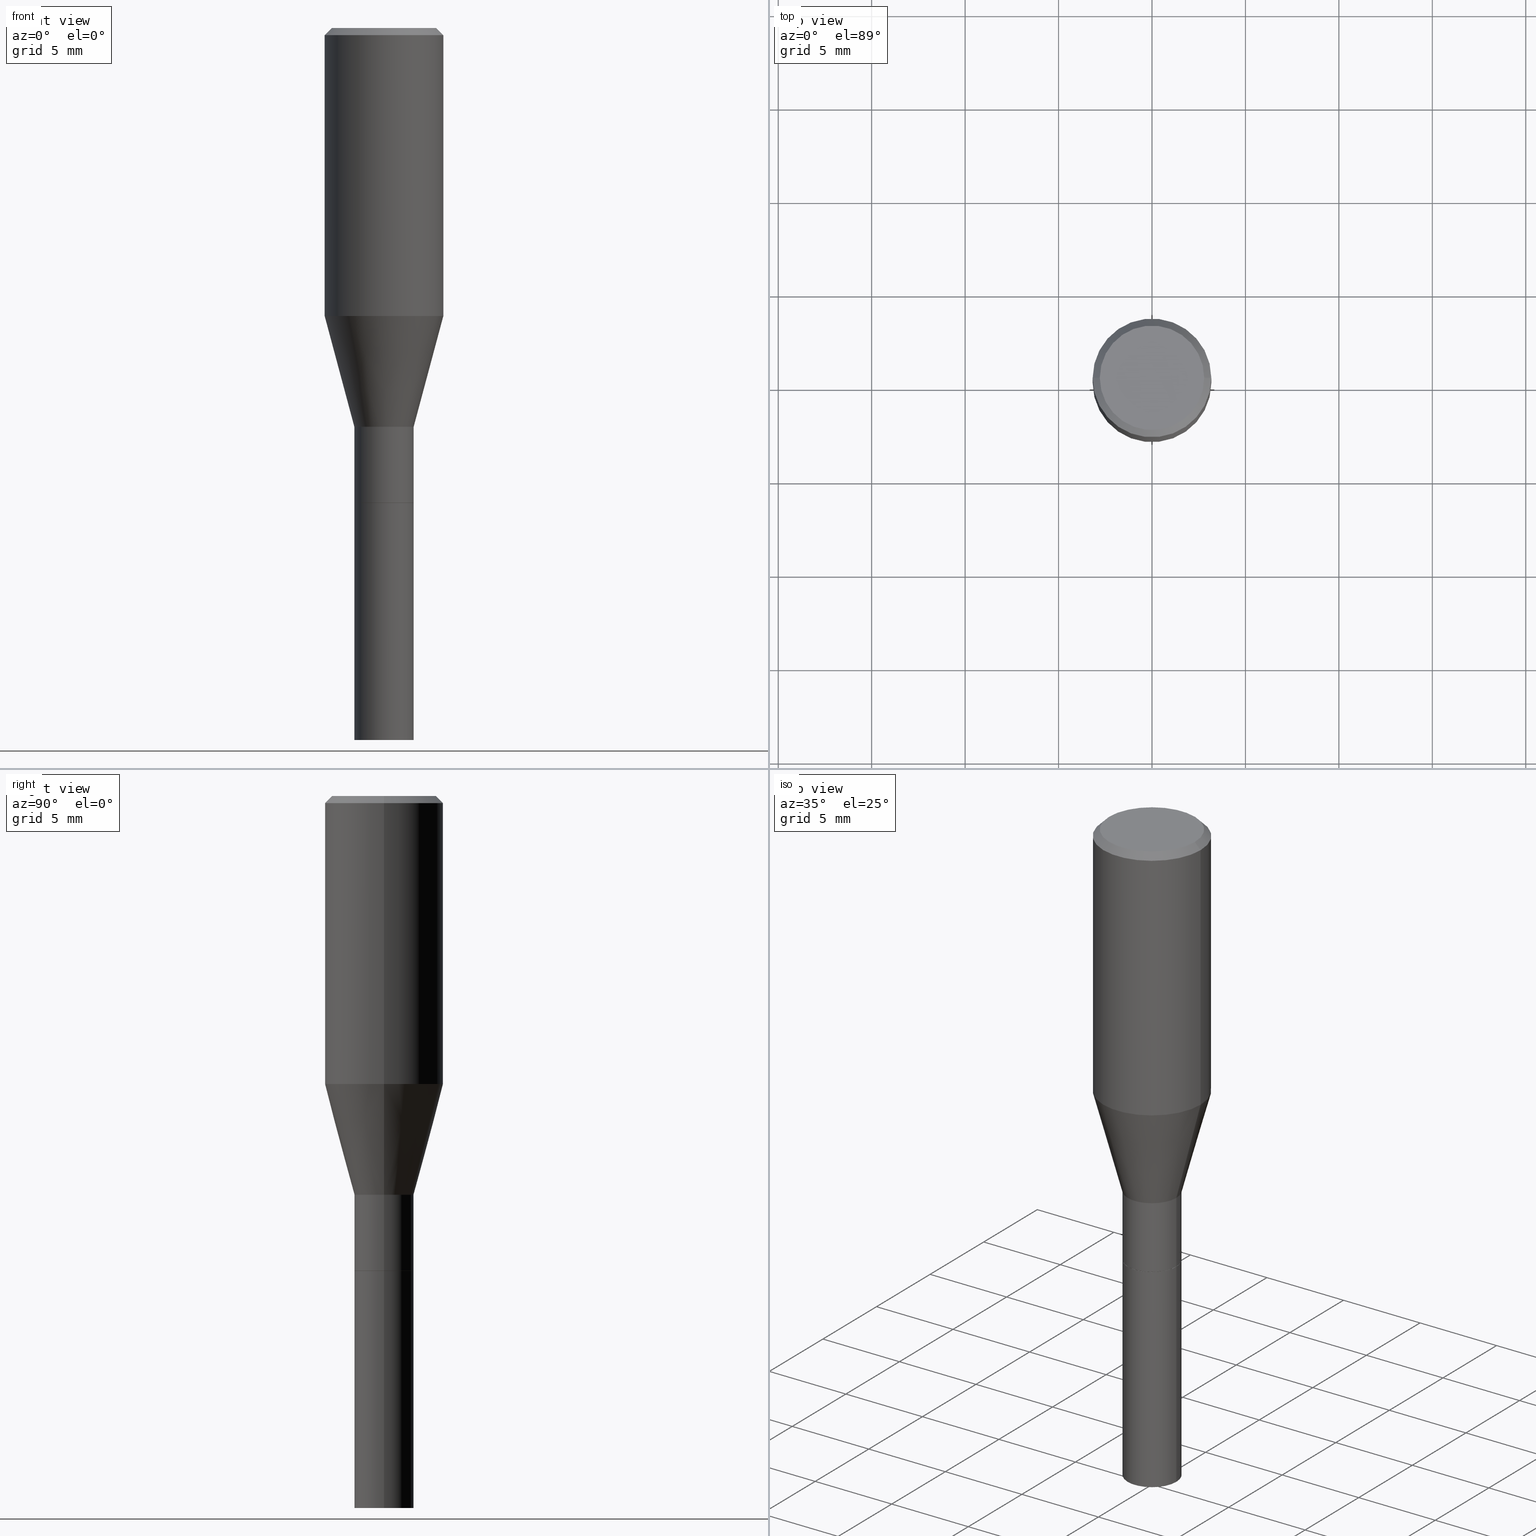
[diagram: canonical four-view strip — front | top / right | iso, engineering-drawing reading convention]
A machine part, canonical four-view strip (front | top / right | iso — engineering-drawing reading convention). The complete STEP part file that produces these views, byte-faithful:
ISO-10303-21;
HEADER;
FILE_DESCRIPTION (( 'STEP AP203' ),
    '1' );
FILE_NAME ('91001.STEP',
    '2024-03-12T20:20:20',
    ( '' ),
    ( '' ),
    'SwSTEP 2.0',
    'SolidWorks 2023',
    '' );
FILE_SCHEMA (( 'CONFIG_CONTROL_DESIGN' ));
ENDSEC;

DATA;
#1 = VECTOR ( 'NONE', #235, 39.37007874015748143 ) ;
#2 = AXIS2_PLACEMENT_3D ( 'NONE', #300, #174, #449 ) ;
#3 = ORIENTED_EDGE ( 'NONE', *, *, #60, .F. ) ;
#4 = ORIENTED_EDGE ( 'NONE', *, *, #387, .T. ) ;
#5 = CARTESIAN_POINT ( 'NONE',  ( 2.445468806185136877E-29, -3.491481338843145977E-15, -1.000000000000000222 ) ) ;
#6 = ORIENTED_EDGE ( 'NONE', *, *, #167, .F. ) ;
#7 = PLANE ( 'NONE',  #180 ) ;
#8 = PLANE ( 'NONE',  #272 ) ;
#9 = ORIENTED_EDGE ( 'NONE', *, *, #310, .F. ) ;
#10 = CYLINDRICAL_SURFACE ( 'NONE', #289, 0.06250000000000000000 ) ;
#11 = VERTEX_POINT ( 'NONE', #260 ) ;
#12 = CARTESIAN_POINT ( 'NONE',  ( -0.06250000000000000000, -3.920262463703869855E-15, -1.500000000000000222 ) ) ;
#13 = CARTESIAN_POINT ( 'NONE',  ( 7.681258945454893776E-16, 0.1100000000000000006, -3.567410525261111604E-16 ) ) ;
#14 = CARTESIAN_POINT ( 'NONE',  ( 0.06250000000000000000, -4.364351673553916694E-16, 3.047610484872459871E-30 ) ) ;
#15 = CYLINDRICAL_SURFACE ( 'NONE', #101, 0.1250000000000000000 ) ;
#16 = CIRCLE ( 'NONE', #173, 0.06199999999999999956 ) ;
#17 = AXIS2_PLACEMENT_3D ( 'NONE', #166, #97, #210 ) ;
#18 = CARTESIAN_POINT ( 'NONE',  ( 3.668203209277704895E-29, -5.237222008264718177E-15, -1.500000000000000222 ) ) ;
#19 = PERSON_AND_ORGANIZATION_ROLE ( 'design_owner' ) ;
#20 = CARTESIAN_POINT ( 'NONE',  ( -0.1250000000000000000, 8.881784197001252323E-16, -6.148668862818632227E-30 ) ) ;
#21 = DIRECTION ( 'NONE',  ( -2.445468806185136597E-29, 3.491481338843145583E-15, 1.000000000000000000 ) ) ;
#22 = CALENDAR_DATE ( 2024, 12, 3 ) ;
#23 = DIRECTION ( 'NONE',  ( 1.000000000000000000, -6.982962677686266711E-15, 0.000000000000000000 ) ) ;
#24 = EDGE_CURVE ( 'NONE', #263, #356, #122, .T. ) ;
#25 = APPROVAL_DATE_TIME ( #407, #54 ) ;
#26 = DIRECTION ( 'NONE',  ( 1.000000000000000000, -6.982962677686266711E-15, 4.876176775795935232E-29 ) ) ;
#27 = DIRECTION ( 'NONE',  ( -2.445468806185136877E-29, 3.491481338843145188E-15, 1.000000000000000000 ) ) ;
#28 = FACE_OUTER_BOUND ( 'NONE', #385, .T. ) ;
#29 = CIRCLE ( 'NONE', #96, 0.06250000000000002776 ) ;
#30 = DIRECTION ( 'NONE',  ( 1.000000000000000000, -6.982962677686266711E-15, 4.876176775795935232E-29 ) ) ;
#31 = EDGE_LOOP ( 'NONE', ( #349, #4, #378, #148 ) ) ;
#32 = AXIS2_PLACEMENT_3D ( 'NONE', #270, #176, #372 ) ;
#33 = ADVANCED_FACE ( 'NONE', ( #438 ), #220, .T. ) ;
#34 = DIRECTION ( 'NONE',  ( -2.445468806185136597E-29, 3.491481338843145583E-15, 1.000000000000000000 ) ) ;
#35 = ORIENTED_EDGE ( 'NONE', *, *, #141, .T. ) ;
#36 = ADVANCED_FACE ( 'NONE', ( #159 ), #10, .T. ) ;
#37 = EDGE_LOOP ( 'NONE', ( #158, #103, #327, #115 ) ) ;
#38 = ORIENTED_EDGE ( 'NONE', *, *, #145, .T. ) ;
#39 = CARTESIAN_POINT ( 'NONE',  ( 1.483780432632532673E-29, -2.118445215238167770E-15, -0.6067468245269458382 ) ) ;
#40 = ORIENTED_EDGE ( 'NONE', *, *, #248, .F. ) ;
#41 = ADVANCED_FACE ( 'NONE', ( #201 ), #8, .F. ) ;
#42 = ORIENTED_EDGE ( 'NONE', *, *, #221, .T. ) ;
#43 = ADVANCED_FACE ( 'NONE', ( #365 ), #15, .T. ) ;
#44 = DIRECTION ( 'NONE',  ( -2.438088387897960049E-29, 3.491481338843145188E-15, 1.000000000000000000 ) ) ;
#45 = DIRECTION ( 'NONE',  ( -2.445468806185136877E-29, 3.491481338843145188E-15, 1.000000000000000000 ) ) ;
#46 = DIRECTION ( 'NONE',  ( 1.000000000000000000, -6.982962677686262766E-15, 0.000000000000000000 ) ) ;
#47 = AXIS2_PLACEMENT_3D ( 'NONE', #466, #249, #352 ) ;
#48 = CARTESIAN_POINT ( 'NONE',  ( 0.1250000000000000000, -9.252425547934304180E-16, -0.01499999999999999944 ) ) ;
#49 = VERTEX_POINT ( 'NONE', #48 ) ;
#50 = DIRECTION ( 'NONE',  ( -0.7071067811865461294, 2.468850131082242072E-15, -0.7071067811865489050 ) ) ;
#51 = DIRECTION ( 'NONE',  ( -1.000000000000000000, 6.982962677686265922E-15, -4.876176775795935793E-29 ) ) ;
#52 = CARTESIAN_POINT ( 'NONE',  ( 0.06250000000000000000, -5.673657175620109846E-15, -1.500000000000000222 ) ) ;
#53 = DIRECTION ( 'NONE',  ( 1.000000000000000000, -6.982962677686270655E-15, 0.000000000000000000 ) ) ;
#54 = APPROVAL ( #233, 'UNSPECIFIED' ) ;
#55 = DIRECTION ( 'NONE',  ( -1.000000000000000000, 6.982962677686266711E-15, 0.000000000000000000 ) ) ;
#56 = MECHANICAL_CONTEXT ( 'NONE', #133, 'mechanical' ) ;
#57 = ADVANCED_FACE ( 'NONE', ( #191 ), #441, .T. ) ;
#58 = DIRECTION ( 'NONE',  ( 0.7071067811865461294, -7.319954787623251312E-15, -0.7071067811865489050 ) ) ;
#59 = DIRECTION ( 'NONE',  ( 1.000000000000000000, -6.982962677686266711E-15, 0.000000000000000000 ) ) ;
#60 = EDGE_CURVE ( 'NONE', #315, #435, #287, .T. ) ;
#61 = ADVANCED_FACE ( 'NONE', ( #397 ), #440, .F. ) ;
#62 = CARTESIAN_POINT ( 'NONE',  ( 0.1250000000000000000, -8.728703347107833388E-16, 6.095220969744919741E-30 ) ) ;
#63 = FACE_OUTER_BOUND ( 'NONE', #424, .T. ) ;
#64 = AXIS2_PLACEMENT_3D ( 'NONE', #182, #284, #30 ) ;
#65 = DATE_TIME_ROLE ( 'creation_date' ) ;
#66 = DIRECTION ( 'NONE',  ( -2.445468806185136597E-29, 3.491481338843145583E-15, 1.000000000000000000 ) ) ;
#67 = ORIENTED_EDGE ( 'NONE', *, *, #175, .T. ) ;
#68 = EDGE_LOOP ( 'NONE', ( #67, #253, #382, #3 ) ) ;
#69 =( LENGTH_UNIT ( ) NAMED_UNIT ( * ) SI_UNIT ( $, .METRE. ) );
#70 = APPROVAL_ROLE ( '' ) ;
#71 = CIRCLE ( 'NONE', #32, 0.06250000000000002776 ) ;
#72 = FACE_OUTER_BOUND ( 'NONE', #199, .T. ) ;
#73 = ORIENTED_EDGE ( 'NONE', *, *, #129, .T. ) ;
#74 = ORIENTED_EDGE ( 'NONE', *, *, #361, .F. ) ;
#75 = VERTEX_POINT ( 'NONE', #225 ) ;
#76 = EDGE_LOOP ( 'NONE', ( #40, #183 ) ) ;
#77 =( GEOMETRIC_REPRESENTATION_CONTEXT ( 3 ) GLOBAL_UNCERTAINTY_ASSIGNED_CONTEXT ( ( #405 ) ) GLOBAL_UNIT_ASSIGNED_CONTEXT ( ( #415, #379, #383 ) ) REPRESENTATION_CONTEXT ( 'NONE', 'WORKASPACE' ) );
#78 = ORIENTED_EDGE ( 'NONE', *, *, #387, .F. ) ;
#79 = DIRECTION ( 'NONE',  ( 1.000000000000000000, -6.982962677686266711E-15, 4.876176775795935793E-29 ) ) ;
#80 = APPROVAL_PERSON_ORGANIZATION ( #142, #239, #70 ) ;
#81 = VERTEX_POINT ( 'NONE', #84 ) ;
#82 = EDGE_CURVE ( 'NONE', #435, #285, #29, .T. ) ;
#83 = CC_DESIGN_PERSON_AND_ORGANIZATION_ASSIGNMENT ( #212, #104, ( #232 ) ) ;
#84 = CARTESIAN_POINT ( 'NONE',  ( -0.1100000000000000006, 7.943120045868128186E-16, 5.464378949326430820E-17 ) ) ;
#85 = ORIENTED_EDGE ( 'NONE', *, *, #144, .F. ) ;
#86 = AXIS2_PLACEMENT_3D ( 'NONE', #119, #400, #87 ) ;
#87 = DIRECTION ( 'NONE',  ( 1.000000000000000000, -6.982962677686267499E-15, 0.000000000000000000 ) ) ;
#88 = VECTOR ( 'NONE', #316, 39.37007874015748854 ) ;
#89 = VECTOR ( 'NONE', #345, 39.37007874015748854 ) ;
#90 = EDGE_CURVE ( 'NONE', #75, #285, #156, .T. ) ;
#91 = PERSON_AND_ORGANIZATION ( #224, #106 ) ;
#92 = APPLICATION_CONTEXT ( 'configuration controlled 3d designs of mechanical parts and assemblies' ) ;
#93 = LOCAL_TIME ( 16, 20, 20.00000000000000000, #169 ) ;
#94 = DIRECTION ( 'NONE',  ( 2.445468806185136597E-29, -3.491481338843145583E-15, -1.000000000000000000 ) ) ;
#95 = CARTESIAN_POINT ( 'NONE',  ( -0.06250000000000005551, 4.440892098500630106E-16, -3.074334431409318916E-30 ) ) ;
#96 = AXIS2_PLACEMENT_3D ( 'NONE', #194, #297, #404 ) ;
#97 = DIRECTION ( 'NONE',  ( -2.445468806185136597E-29, 3.491481338843145583E-15, 1.000000000000000000 ) ) ;
#98 = AXIS2_PLACEMENT_3D ( 'NONE', #127, #94, #55 ) ;
#99 = DIRECTION ( 'NONE',  ( 1.000000000000000000, -6.982962677686270655E-15, 0.000000000000000000 ) ) ;
#100 = DATE_AND_TIME ( #131, #445 ) ;
#101 = AXIS2_PLACEMENT_3D ( 'NONE', #394, #437, #162 ) ;
#102 = AXIS2_PLACEMENT_3D ( 'NONE', #170, #299, #99 ) ;
#103 = ORIENTED_EDGE ( 'NONE', *, *, #377, .F. ) ;
#104 = PERSON_AND_ORGANIZATION_ROLE ( 'creator' ) ;
#105 = FACE_OUTER_BOUND ( 'NONE', #219, .T. ) ;
#106 = ORGANIZATION ( 'UNSPECIFIED', 'UNSPECIFIED', '' ) ;
#107 = EDGE_CURVE ( 'NONE', #414, #321, #375, .T. ) ;
#108 = LENGTH_MEASURE_WITH_UNIT ( LENGTH_MEASURE( 0.02539999999999999897 ), #69 );
#109 = DIRECTION ( 'NONE',  ( 1.000000000000000000, -6.982962677686266711E-15, 0.000000000000000000 ) ) ;
#110 = ORIENTED_EDGE ( 'NONE', *, *, #434, .F. ) ;
#111 = CARTESIAN_POINT ( 'NONE',  ( 2.445468806185136877E-29, -3.491481338843145977E-15, -1.000000000000000222 ) ) ;
#112 = ORIENTED_EDGE ( 'NONE', *, *, #401, .T. ) ;
#113 = ORIENTED_EDGE ( 'NONE', *, *, #461, .T. ) ;
#114 = CARTESIAN_POINT ( 'NONE',  ( 0.000000000000000000, 0.000000000000000000, 0.000000000000000000 ) ) ;
#115 = ORIENTED_EDGE ( 'NONE', *, *, #416, .T. ) ;
#116 = VECTOR ( 'NONE', #125, 39.37007874015748143 ) ;
#117 = ORIENTED_EDGE ( 'NONE', *, *, #90, .F. ) ;
#118 = DIRECTION ( 'NONE',  ( -2.445468806185136597E-29, 3.491481338843145583E-15, 1.000000000000000000 ) ) ;
#119 = CARTESIAN_POINT ( 'NONE',  ( 2.054193797195514674E-29, -2.932844324628242353E-15, -0.8400000000000000799 ) ) ;
#120 = DIRECTION ( 'NONE',  ( -2.438088387897960049E-29, 3.491481338843145188E-15, 1.000000000000000000 ) ) ;
#121 = DIRECTION ( 'NONE',  ( -1.000000000000000000, 6.982962677686265922E-15, -4.876176775795935793E-29 ) ) ;
#122 = CIRCLE ( 'NONE', #202, 0.06250000000000000000 ) ;
#123 = ADVANCED_FACE ( 'NONE', ( #323 ), #412, .T. ) ;
#124 = VECTOR ( 'NONE', #58, 39.37007874015748143 ) ;
#125 = DIRECTION ( 'NONE',  ( -2.445468806185136877E-29, 3.491481338843145188E-15, 1.000000000000000000 ) ) ;
#126 = CARTESIAN_POINT ( 'NONE',  ( 4.364351673554160748E-16, 0.06249999999999650974, -1.000000000000000444 ) ) ;
#127 = CARTESIAN_POINT ( 'NONE',  ( 3.668203209277705088E-31, -5.237222008264718399E-17, -0.01499999999999999944 ) ) ;
#128 = CARTESIAN_POINT ( 'NONE',  ( 3.668203209277705088E-31, -5.237222008264718399E-17, -0.01499999999999999944 ) ) ;
#129 = EDGE_CURVE ( 'NONE', #414, #49, #168, .T. ) ;
#130 = CARTESIAN_POINT ( 'NONE',  ( 0.1100000000000000006, -8.322946247794783877E-16, 5.464378949327537075E-17 ) ) ;
#131 = CALENDAR_DATE ( 2024, 12, 3 ) ;
#132 = AXIS2_PLACEMENT_3D ( 'NONE', #126, #265, #121 ) ;
#133 = APPLICATION_CONTEXT ( 'configuration controlled 3d designs of mechanical parts and assemblies' ) ;
#134 = CARTESIAN_POINT ( 'NONE',  ( 0.000000000000000000, 0.000000000000000000, 0.000000000000000000 ) ) ;
#135 = CARTESIAN_POINT ( 'NONE',  ( 3.668203209277705088E-31, -5.237222008264718399E-17, -0.01499999999999999944 ) ) ;
#136 = CARTESIAN_POINT ( 'NONE',  ( 0.000000000000000000, 0.000000000000000000, 0.000000000000000000 ) ) ;
#137 = PERSON_AND_ORGANIZATION_ROLE ( 'creator' ) ;
#138 = FACE_OUTER_BOUND ( 'NONE', #31, .T. ) ;
#139 = CIRCLE ( 'NONE', #343, 0.1250000000000000000 ) ;
#140 = CARTESIAN_POINT ( 'NONE',  ( -1.336296826575383585E-45, 1.907877712994245642E-31, 5.464378949326977476E-17 ) ) ;
#141 = EDGE_CURVE ( 'NONE', #292, #319, #255, .T. ) ;
#142 = PERSON_AND_ORGANIZATION ( #224, #106 ) ;
#143 = CARTESIAN_POINT ( 'NONE',  ( 3.668203209277704895E-29, -5.237222008264718177E-15, -1.500000000000000222 ) ) ;
#144 = EDGE_CURVE ( 'NONE', #358, #288, #16, .T. ) ;
#145 = EDGE_CURVE ( 'NONE', #49, #11, #455, .T. ) ;
#146 = LINE ( 'NONE', #320, #359 ) ;
#147 = VECTOR ( 'NONE', #172, 39.37007874015748143 ) ;
#148 = ORIENTED_EDGE ( 'NONE', *, *, #157, .F. ) ;
#149 = ORIENTED_EDGE ( 'NONE', *, *, #179, .F. ) ;
#150 = ADVANCED_FACE ( 'NONE', ( #138 ), #336, .T. ) ;
#151 = DIRECTION ( 'NONE',  ( -1.000000000000000000, 6.982962677686266711E-15, 0.000000000000000000 ) ) ;
#152 = ORIENTED_EDGE ( 'NONE', *, *, #337, .F. ) ;
#153 = AXIS2_PLACEMENT_3D ( 'NONE', #39, #294, #189 ) ;
#154 = ORIENTED_EDGE ( 'NONE', *, *, #198, .T. ) ;
#155 = AXIS2_PLACEMENT_3D ( 'NONE', #258, #396, #197 ) ;
#156 = LINE ( 'NONE', #95, #1 ) ;
#157 = EDGE_CURVE ( 'NONE', #435, #414, #267, .T. ) ;
#158 = ORIENTED_EDGE ( 'NONE', *, *, #401, .F. ) ;
#159 = FACE_OUTER_BOUND ( 'NONE', #367, .T. ) ;
#160 = CC_DESIGN_PERSON_AND_ORGANIZATION_ASSIGNMENT ( #312, #137, ( #348 ) ) ;
#161 = PERSON_AND_ORGANIZATION ( #224, #106 ) ;
#162 = DIRECTION ( 'NONE',  ( 1.000000000000000000, -6.982962677686266711E-15, 4.876176775795935793E-29 ) ) ;
#163 = LINE ( 'NONE', #338, #89 ) ;
#164 = DIRECTION ( 'NONE',  ( -2.445468806185136597E-29, 3.491481338843145583E-15, 1.000000000000000000 ) ) ;
#165 = APPROVAL_ROLE ( '' ) ;
#166 = CARTESIAN_POINT ( 'NONE',  ( 0.000000000000000000, 0.000000000000000000, 0.000000000000000000 ) ) ;
#167 = EDGE_CURVE ( 'NONE', #75, #315, #266, .T. ) ;
#168 = LINE ( 'NONE', #62, #171 ) ;
#169 = COORDINATED_UNIVERSAL_TIME_OFFSET ( 5, 0, .BEHIND. ) ;
#170 = CARTESIAN_POINT ( 'NONE',  ( 2.445468806185136877E-29, -3.491481338843145977E-15, -1.000000000000000222 ) ) ;
#171 = VECTOR ( 'NONE', #27, 39.37007874015748143 ) ;
#172 = DIRECTION ( 'NONE',  ( -0.7071067811865656694, 7.493145998870420424E-15, 0.7071067811865294761 ) ) ;
#173 = AXIS2_PLACEMENT_3D ( 'NONE', #341, #21, #208 ) ;
#174 = DIRECTION ( 'NONE',  ( -2.445468806185136597E-29, 3.491481338843145583E-15, 1.000000000000000000 ) ) ;
#175 = EDGE_CURVE ( 'NONE', #315, #75, #393, .T. ) ;
#176 = DIRECTION ( 'NONE',  ( -2.445468806185136597E-29, 3.491481338843145583E-15, 1.000000000000000000 ) ) ;
#177 = SECURITY_CLASSIFICATION_LEVEL ( 'unclassified' ) ;
#178 = DIRECTION ( 'NONE',  ( 1.000000000000000000, -6.982962677686262766E-15, 0.000000000000000000 ) ) ;
#179 = EDGE_CURVE ( 'NONE', #321, #414, #139, .T. ) ;
#180 = AXIS2_PLACEMENT_3D ( 'NONE', #111, #44, #333 ) ;
#181 = ORIENTED_EDGE ( 'NONE', *, *, #290, .F. ) ;
#182 = CARTESIAN_POINT ( 'NONE',  ( 0.000000000000000000, 0.000000000000000000, 0.000000000000000000 ) ) ;
#183 = ORIENTED_EDGE ( 'NONE', *, *, #141, .F. ) ;
#184 = CARTESIAN_POINT ( 'NONE',  ( 0.06250000000000000000, -3.927916506198537646E-15, -1.000000000000000222 ) ) ;
#185 = AXIS2_PLACEMENT_3D ( 'NONE', #135, #411, #59 ) ;
#186 = ORIENTED_EDGE ( 'NONE', *, *, #145, .F. ) ;
#187 = ORIENTED_EDGE ( 'NONE', *, *, #337, .T. ) ;
#188 = LOCAL_TIME ( 16, 20, 20.00000000000000000, #324 ) ;
#189 = DIRECTION ( 'NONE',  ( 1.000000000000000000, -6.982962677686266711E-15, 0.000000000000000000 ) ) ;
#190 = EDGE_LOOP ( 'NONE', ( #360, #112, #38, #325 ) ) ;
#191 = FACE_OUTER_BOUND ( 'NONE', #37, .T. ) ;
#192 = ORIENTED_EDGE ( 'NONE', *, *, #221, .F. ) ;
#193 = CARTESIAN_POINT ( 'NONE',  ( -0.1250000000000000000, 8.204981146281362596E-16, -0.01499999999999999944 ) ) ;
#194 = CARTESIAN_POINT ( 'NONE',  ( 2.054193797195514674E-29, -2.932844324628242353E-15, -0.8400000000000000799 ) ) ;
#195 = ORIENTED_EDGE ( 'NONE', *, *, #129, .F. ) ;
#196 = VECTOR ( 'NONE', #370, 39.37007874015748143 ) ;
#197 = DIRECTION ( 'NONE',  ( 1.000000000000000000, -6.982962677686262766E-15, 0.000000000000000000 ) ) ;
#198 = EDGE_CURVE ( 'NONE', #429, #81, #203, .T. ) ;
#199 = EDGE_LOOP ( 'NONE', ( #464, #313, #73, #398 ) ) ;
#200 = CC_DESIGN_APPROVAL ( #239, ( #347 ) ) ;
#201 = FACE_OUTER_BOUND ( 'NONE', #388, .T. ) ;
#202 = AXIS2_PLACEMENT_3D ( 'NONE', #364, #295, #46 ) ;
#203 = CIRCLE ( 'NONE', #211, 0.1100000000000000006 ) ;
#204 = LINE ( 'NONE', #452, #147 ) ;
#205 = LINE ( 'NONE', #20, #116 ) ;
#206 = DIRECTION ( 'NONE',  ( 1.000000000000000000, -6.982962677686262766E-15, 0.000000000000000000 ) ) ;
#207 = CARTESIAN_POINT ( 'NONE',  ( 0.1250000000000000000, -2.991315549948951109E-15, -0.6067468245269458382 ) ) ;
#208 = DIRECTION ( 'NONE',  ( 1.000000000000000000, -6.982962677686270655E-15, 0.000000000000000000 ) ) ;
#209 = VECTOR ( 'NONE', #45, 39.37007874015748143 ) ;
#210 = DIRECTION ( 'NONE',  ( 1.000000000000000000, -6.982962677686266711E-15, 4.876176775795935793E-29 ) ) ;
#211 = AXIS2_PLACEMENT_3D ( 'NONE', #140, #381, #460 ) ;
#212 = PERSON_AND_ORGANIZATION ( #224, #106 ) ;
#213 = DESIGN_CONTEXT ( 'detailed design', #92, 'design' ) ;
#214 = CARTESIAN_POINT ( 'NONE',  ( 1.483780432632532673E-29, -2.118445215238167770E-15, -0.6067468245269458382 ) ) ;
#215 = CARTESIAN_POINT ( 'NONE',  ( 0.000000000000000000, 0.000000000000000000, 0.000000000000000000 ) ) ;
#216 = DIRECTION ( 'NONE',  ( -2.445468806185136597E-29, 3.491481338843145583E-15, 1.000000000000000000 ) ) ;
#217 = CIRCLE ( 'NONE', #256, 0.06250000000000000000 ) ;
#218 = ORIENTED_EDGE ( 'NONE', *, *, #310, .T. ) ;
#219 = EDGE_LOOP ( 'NONE', ( #227, #187, #465, #74 ) ) ;
#220 = CONICAL_SURFACE ( 'NONE', #86, 0.06250000000000002776, 0.2617993877991499074 ) ;
#221 = EDGE_CURVE ( 'NONE', #292, #356, #146, .T. ) ;
#222 = AXIS2_PLACEMENT_3D ( 'NONE', #304, #308, #373 ) ;
#223 = ORIENTED_EDGE ( 'NONE', *, *, #453, .F. ) ;
#224 = PERSON ( 'UNSPECIFIED', 'UNSPECIFIED', 'UNSPECIFIED', ('UNSPECIFIED'), ('UNSPECIFIED'), ('UNSPECIFIED') ) ;
#225 = CARTESIAN_POINT ( 'NONE',  ( -0.06250000000000005551, -3.045646388323661463E-15, -0.9995000000000000551 ) ) ;
#226 = ORIENTED_EDGE ( 'NONE', *, *, #434, .T. ) ;
#227 = ORIENTED_EDGE ( 'NONE', *, *, #144, .T. ) ;
#228 = ADVANCED_FACE ( 'NONE', ( #72 ), #380, .T. ) ;
#229 = ADVANCED_FACE ( 'NONE', ( #28 ), #425, .T. ) ;
#230 = CARTESIAN_POINT ( 'NONE',  ( -0.06199999999999999956, -3.048295615497772664E-15, -1.000000000000000222 ) ) ;
#231 = ORIENTED_EDGE ( 'NONE', *, *, #107, .T. ) ;
#232 = PRODUCT_DEFINITION_FORMATION_WITH_SPECIFIED_SOURCE ( 'ANY', '', #409, .NOT_KNOWN. ) ;
#233 = APPROVAL_STATUS ( 'not_yet_approved' ) ;
#234 = FACE_OUTER_BOUND ( 'NONE', #190, .T. ) ;
#235 = DIRECTION ( 'NONE',  ( -2.445468806185136877E-29, 3.491481338843145188E-15, 1.000000000000000000 ) ) ;
#236 = CARTESIAN_POINT ( 'NONE',  ( -0.1250000000000000000, -1.230266795538042735E-15, -0.6067468245269458382 ) ) ;
#237 = DIMENSIONAL_EXPONENTS ( 1.000000000000000000, 0.000000000000000000, 0.000000000000000000, 0.000000000000000000, 0.000000000000000000, 0.000000000000000000, 0.000000000000000000 ) ;
#238 = LINE ( 'NONE', #443, #196 ) ;
#239 = APPROVAL ( #421, 'UNSPECIFIED' ) ;
#240 = APPROVAL_DATE_TIME ( #100, #291 ) ;
#241 = AXIS2_PLACEMENT_3D ( 'NONE', #18, #459, #206 ) ;
#242 = CONICAL_SURFACE ( 'NONE', #98, 0.1250000000000000000, 0.7853981633974463916 ) ;
#243 = APPROVAL_PERSON_ORGANIZATION ( #456, #291, #458 ) ;
#244 = DIRECTION ( 'NONE',  ( 1.000000000000000000, -6.982962677686264344E-15, 0.000000000000000000 ) ) ;
#245 = PERSON_AND_ORGANIZATION_ROLE ( 'design_supplier' ) ;
#246 = CLOSED_SHELL ( 'NONE', ( #317, #273, #36, #61 ) ) ;
#247 = CIRCLE ( 'NONE', #102, 0.06199999999999999956 ) ;
#248 = EDGE_CURVE ( 'NONE', #319, #292, #217, .T. ) ;
#249 = DIRECTION ( 'NONE',  ( -2.445468806185136597E-29, 3.491481338843145583E-15, 1.000000000000000000 ) ) ;
#250 = EDGE_LOOP ( 'NONE', ( #85, #110 ) ) ;
#251 = LINE ( 'NONE', #14, #344 ) ;
#252 = DATE_AND_TIME ( #353, #188 ) ;
#253 = ORIENTED_EDGE ( 'NONE', *, *, #90, .T. ) ;
#254 = ORIENTED_EDGE ( 'NONE', *, *, #361, .T. ) ;
#255 = CIRCLE ( 'NONE', #241, 0.06250000000000000000 ) ;
#256 = AXIS2_PLACEMENT_3D ( 'NONE', #143, #278, #178 ) ;
#257 = EDGE_LOOP ( 'NONE', ( #78, #391, #330, #149 ) ) ;
#258 = CARTESIAN_POINT ( 'NONE',  ( 2.445468806185136877E-29, -3.491481338843145977E-15, -1.000000000000000222 ) ) ;
#259 = CARTESIAN_POINT ( 'NONE',  ( 0.06250000000000005551, -4.364351673553920638E-16, 3.047610484872462323E-30 ) ) ;
#260 = CARTESIAN_POINT ( 'NONE',  ( -0.1250000000000000000, -1.972302979602822908E-16, -0.01499999999999999944 ) ) ;
#261 = ADVANCED_FACE ( 'NONE', ( #105 ), #376, .T. ) ;
#262 = CARTESIAN_POINT ( 'NONE',  ( 0.06250000000000005551, -3.926170765529116932E-15, -0.9995000000000000551 ) ) ;
#263 = VERTEX_POINT ( 'NONE', #184 ) ;
#264 = AXIS2_PLACEMENT_3D ( 'NONE', #5, #118, #53 ) ;
#265 = DIRECTION ( 'NONE',  ( 2.438088387897960049E-29, -3.491481338843145188E-15, -1.000000000000000000 ) ) ;
#266 = CIRCLE ( 'NONE', #410, 0.06250000000000005551 ) ;
#267 = LINE ( 'NONE', #274, #88 ) ;
#268 = FACE_OUTER_BOUND ( 'NONE', #68, .T. ) ;
#269 = MANIFOLD_SOLID_BREP ( 'Body-Move/Copy2[1]', #246 ) ;
#270 = CARTESIAN_POINT ( 'NONE',  ( 2.054193797195514674E-29, -2.932844324628242353E-15, -0.8400000000000000799 ) ) ;
#271 = DATE_AND_TIME ( #22, #280 ) ;
#272 = AXIS2_PLACEMENT_3D ( 'NONE', #13, #328, #51 ) ;
#273 = ADVANCED_FACE ( 'NONE', ( #386 ), #311, .F. ) ;
#274 = CARTESIAN_POINT ( 'NONE',  ( 0.06250000000000002776, -3.369279491983634416E-15, -0.8400000000000000799 ) ) ;
#275 = COORDINATED_UNIVERSAL_TIME_OFFSET ( 5, 0, .BEHIND. ) ;
#276 = DIRECTION ( 'NONE',  ( -2.445468806185136877E-29, 3.491481338843145188E-15, 1.000000000000000000 ) ) ;
#277 = ADVANCED_BREP_SHAPE_REPRESENTATION ( '91001', ( #269, #442, #432 ), #77 ) ;
#278 = DIRECTION ( 'NONE',  ( -2.445468806185136597E-29, 3.491481338843145583E-15, 1.000000000000000000 ) ) ;
#279 = DIRECTION ( 'NONE',  ( -2.445468806185136597E-29, 3.491481338843145583E-15, 1.000000000000000000 ) ) ;
#280 = LOCAL_TIME ( 16, 20, 20.00000000000000000, #309 ) ;
#281 = SHAPE_DEFINITION_REPRESENTATION ( #451, #277 ) ;
#282 = EDGE_LOOP ( 'NONE', ( #363, #390 ) ) ;
#283 = ADVANCED_FACE ( 'NONE', ( #293 ), #7, .F. ) ;
#284 = DIRECTION ( 'NONE',  ( -2.445468806185136597E-29, 3.491481338843145583E-15, 1.000000000000000000 ) ) ;
#285 = VERTEX_POINT ( 'NONE', #431 ) ;
#286 = ORIENTED_EDGE ( 'NONE', *, *, #24, .F. ) ;
#287 = LINE ( 'NONE', #259, #209 ) ;
#288 = VERTEX_POINT ( 'NONE', #230 ) ;
#289 = AXIS2_PLACEMENT_3D ( 'NONE', #114, #331, #79 ) ;
#290 = EDGE_CURVE ( 'NONE', #356, #263, #314, .T. ) ;
#291 = APPROVAL ( #417, 'UNSPECIFIED' ) ;
#292 = VERTEX_POINT ( 'NONE', #12 ) ;
#293 = FACE_OUTER_BOUND ( 'NONE', #250, .T. ) ;
#294 = DIRECTION ( 'NONE',  ( -2.445468806185136597E-29, 3.491481338843145583E-15, 1.000000000000000000 ) ) ;
#295 = DIRECTION ( 'NONE',  ( -2.445468806185136597E-29, 3.491481338843145583E-15, 1.000000000000000000 ) ) ;
#296 = APPLICATION_PROTOCOL_DEFINITION ( 'international standard', 'config_control_design', 1994, #92 ) ;
#297 = DIRECTION ( 'NONE',  ( -2.445468806185136597E-29, 3.491481338843145583E-15, 1.000000000000000000 ) ) ;
#298 = AXIS2_PLACEMENT_3D ( 'NONE', #215, #34, #350 ) ;
#299 = DIRECTION ( 'NONE',  ( -2.445468806185136597E-29, 3.491481338843145583E-15, 1.000000000000000000 ) ) ;
#300 = CARTESIAN_POINT ( 'NONE',  ( 2.054193797195514674E-29, -2.932844324628242353E-15, -0.8400000000000000799 ) ) ;
#301 = COORDINATED_UNIVERSAL_TIME_OFFSET ( 5, 0, .BEHIND. ) ;
#302 = APPLICATION_PROTOCOL_DEFINITION ( 'international standard', 'config_control_design', 1994, #133 ) ;
#303 = PERSON_AND_ORGANIZATION_ROLE ( 'classification_officer' ) ;
#304 = CARTESIAN_POINT ( 'NONE',  ( -1.336296826575383585E-45, 1.907877712994245642E-31, 5.464378949326977476E-17 ) ) ;
#305 = EDGE_CURVE ( 'NONE', #81, #11, #399, .T. ) ;
#306 = CALENDAR_DATE ( 2024, 12, 3 ) ;
#307 = AXIS2_PLACEMENT_3D ( 'NONE', #136, #374, #26 ) ;
#308 = DIRECTION ( 'NONE',  ( -2.445468806185136597E-29, 3.491481338843145583E-15, 1.000000000000000000 ) ) ;
#309 = COORDINATED_UNIVERSAL_TIME_OFFSET ( 5, 0, .BEHIND. ) ;
#310 = EDGE_CURVE ( 'NONE', #319, #263, #251, .T. ) ;
#311 = PLANE ( 'NONE',  #403 ) ;
#312 = PERSON_AND_ORGANIZATION ( #224, #106 ) ;
#313 = ORIENTED_EDGE ( 'NONE', *, *, #179, .T. ) ;
#314 = CIRCLE ( 'NONE', #155, 0.06250000000000000000 ) ;
#315 = VERTEX_POINT ( 'NONE', #262 ) ;
#316 = DIRECTION ( 'NONE',  ( 0.2588190451025211836, 1.565188264969622559E-15, 0.9659258262890679791 ) ) ;
#317 = ADVANCED_FACE ( 'NONE', ( #63 ), #342, .T. ) ;
#318 = DATE_AND_TIME ( #306, #93 ) ;
#319 = VERTEX_POINT ( 'NONE', #52 ) ;
#320 = CARTESIAN_POINT ( 'NONE',  ( -0.06250000000000000000, 4.440892098500626162E-16, -3.074334431409316114E-30 ) ) ;
#321 = VERTEX_POINT ( 'NONE', #236 ) ;
#322 = ORIENTED_EDGE ( 'NONE', *, *, #248, .T. ) ;
#323 = FACE_OUTER_BOUND ( 'NONE', #426, .T. ) ;
#324 = COORDINATED_UNIVERSAL_TIME_OFFSET ( 5, 0, .BEHIND. ) ;
#325 = ORIENTED_EDGE ( 'NONE', *, *, #305, .F. ) ;
#326 = CARTESIAN_POINT ( 'NONE',  ( 3.668203209277705088E-31, -5.237222008264718399E-17, -0.01499999999999999944 ) ) ;
#327 = ORIENTED_EDGE ( 'NONE', *, *, #305, .T. ) ;
#328 = DIRECTION ( 'NONE',  ( 2.438088387897960049E-29, -3.491481338843145188E-15, -1.000000000000000000 ) ) ;
#329 = VECTOR ( 'NONE', #50, 39.37007874015748143 ) ;
#330 = ORIENTED_EDGE ( 'NONE', *, *, #157, .T. ) ;
#331 = DIRECTION ( 'NONE',  ( -2.445468806185136597E-29, 3.491481338843145583E-15, 1.000000000000000000 ) ) ;
#332 = ORIENTED_EDGE ( 'NONE', *, *, #377, .T. ) ;
#333 = DIRECTION ( 'NONE',  ( 1.000000000000000000, -6.982962677686265922E-15, 4.876176775795935793E-29 ) ) ;
#334 = CC_DESIGN_DATE_AND_TIME_ASSIGNMENT ( #318, #463, ( #347 ) ) ;
#335 = CARTESIAN_POINT ( 'NONE',  ( 0.06199999999999999956, -3.924425024859694639E-15, -1.000000000000000222 ) ) ;
#336 = CONICAL_SURFACE ( 'NONE', #2, 0.06250000000000002776, 0.2617993877991499074 ) ;
#337 = EDGE_CURVE ( 'NONE', #288, #75, #204, .T. ) ;
#338 = CARTESIAN_POINT ( 'NONE',  ( -0.06250000000000002776, -2.488755114778179736E-15, -0.8400000000000000799 ) ) ;
#339 = PERSON_AND_ORGANIZATION ( #224, #106 ) ;
#340 = CC_DESIGN_DATE_AND_TIME_ASSIGNMENT ( #271, #65, ( #348 ) ) ;
#341 = CARTESIAN_POINT ( 'NONE',  ( 2.445468806185136877E-29, -3.491481338843145977E-15, -1.000000000000000222 ) ) ;
#342 = CYLINDRICAL_SURFACE ( 'NONE', #17, 0.06250000000000000000 ) ;
#343 = AXIS2_PLACEMENT_3D ( 'NONE', #214, #216, #109 ) ;
#344 = VECTOR ( 'NONE', #436, 39.37007874015748143 ) ;
#345 = DIRECTION ( 'NONE',  ( -0.2588190451025211836, 5.211531920934547886E-15, 0.9659258262890679791 ) ) ;
#346 = PERSON_AND_ORGANIZATION ( #224, #106 ) ;
#347 = SECURITY_CLASSIFICATION ( '', '', #177 ) ;
#348 = PRODUCT_DEFINITION ( 'UNKNOWN', '', #232, #213 ) ;
#349 = ORIENTED_EDGE ( 'NONE', *, *, #82, .T. ) ;
#350 = DIRECTION ( 'NONE',  ( 1.000000000000000000, -6.982962677686266711E-15, 4.876176775795935793E-29 ) ) ;
#351 = CIRCLE ( 'NONE', #185, 0.1250000000000000000 ) ;
#352 = DIRECTION ( 'NONE',  ( 1.000000000000000000, -6.982962677686270655E-15, 0.000000000000000000 ) ) ;
#353 = CALENDAR_DATE ( 2024, 12, 3 ) ;
#354 = CARTESIAN_POINT ( 'NONE',  ( 3.576687321579069994E-29, -5.368277968210015545E-15, -1.500000000000000222 ) ) ;
#355 = APPROVAL_DATE_TIME ( #252, #239 ) ;
#356 = VERTEX_POINT ( 'NONE', #448 ) ;
#357 = AXIS2_PLACEMENT_3D ( 'NONE', #326, #433, #151 ) ;
#358 = VERTEX_POINT ( 'NONE', #335 ) ;
#359 = VECTOR ( 'NONE', #276, 39.37007874015748143 ) ;
#360 = ORIENTED_EDGE ( 'NONE', *, *, #198, .F. ) ;
#361 = EDGE_CURVE ( 'NONE', #358, #315, #238, .T. ) ;
#362 = CC_DESIGN_SECURITY_CLASSIFICATION ( #347, ( #232 ) ) ;
#363 = ORIENTED_EDGE ( 'NONE', *, *, #24, .T. ) ;
#364 = CARTESIAN_POINT ( 'NONE',  ( 2.445468806185136877E-29, -3.491481338843145977E-15, -1.000000000000000222 ) ) ;
#365 = FACE_OUTER_BOUND ( 'NONE', #427, .T. ) ;
#366 = LOCAL_TIME ( 16, 20, 20.00000000000000000, #301 ) ;
#367 = EDGE_LOOP ( 'NONE', ( #192, #35, #218, #181 ) ) ;
#368 = ADVANCED_FACE ( 'NONE', ( #234 ), #242, .T. ) ;
#369 = LINE ( 'NONE', #408, #124 ) ;
#370 = DIRECTION ( 'NONE',  ( 0.7071067811865656694, -2.468850131082446387E-15, 0.7071067811865294761 ) ) ;
#371 = APPROVAL_PERSON_ORGANIZATION ( #91, #54, #165 ) ;
#372 = DIRECTION ( 'NONE',  ( 1.000000000000000000, -6.982962677686267499E-15, 0.000000000000000000 ) ) ;
#373 = DIRECTION ( 'NONE',  ( 1.000000000000000000, -6.982962677686266711E-15, 4.873416144172425341E-29 ) ) ;
#374 = DIRECTION ( 'NONE',  ( -2.445468806185136597E-29, 3.491481338843145583E-15, 1.000000000000000000 ) ) ;
#375 = CIRCLE ( 'NONE', #153, 0.1250000000000000000 ) ;
#376 = CONICAL_SURFACE ( 'NONE', #47, 0.06199999999999999956, 0.7853981633974739252 ) ;
#377 = EDGE_CURVE ( 'NONE', #81, #429, #413, .T. ) ;
#378 = ORIENTED_EDGE ( 'NONE', *, *, #107, .F. ) ;
#379 =( NAMED_UNIT ( * ) PLANE_ANGLE_UNIT ( ) SI_UNIT ( $, .RADIAN. ) );
#380 = CYLINDRICAL_SURFACE ( 'NONE', #298, 0.1250000000000000000 ) ;
#381 = DIRECTION ( 'NONE',  ( -2.445468806185136597E-29, 3.491481338843145583E-15, 1.000000000000000000 ) ) ;
#382 = ORIENTED_EDGE ( 'NONE', *, *, #82, .F. ) ;
#383 =( NAMED_UNIT ( * ) SI_UNIT ( $, .STERADIAN. ) SOLID_ANGLE_UNIT ( ) );
#384 = AXIS2_PLACEMENT_3D ( 'NONE', #128, #164, #23 ) ;
#385 = EDGE_LOOP ( 'NONE', ( #117, #389, #395, #223 ) ) ;
#386 = FACE_OUTER_BOUND ( 'NONE', #76, .T. ) ;
#387 = EDGE_CURVE ( 'NONE', #285, #321, #163, .T. ) ;
#388 = EDGE_LOOP ( 'NONE', ( #332, #154 ) ) ;
#389 = ORIENTED_EDGE ( 'NONE', *, *, #167, .T. ) ;
#390 = ORIENTED_EDGE ( 'NONE', *, *, #290, .T. ) ;
#391 = ORIENTED_EDGE ( 'NONE', *, *, #453, .T. ) ;
#392 = DIRECTION ( 'NONE',  ( 1.000000000000000000, -6.982962677686265922E-15, 4.876176775795935793E-29 ) ) ;
#393 = CIRCLE ( 'NONE', #444, 0.06250000000000005551 ) ;
#394 = CARTESIAN_POINT ( 'NONE',  ( 0.000000000000000000, 0.000000000000000000, 0.000000000000000000 ) ) ;
#395 = ORIENTED_EDGE ( 'NONE', *, *, #60, .T. ) ;
#396 = DIRECTION ( 'NONE',  ( -2.445468806185136597E-29, 3.491481338843145583E-15, 1.000000000000000000 ) ) ;
#397 = FACE_OUTER_BOUND ( 'NONE', #282, .T. ) ;
#398 = ORIENTED_EDGE ( 'NONE', *, *, #416, .F. ) ;
#399 = LINE ( 'NONE', #193, #329 ) ;
#400 = DIRECTION ( 'NONE',  ( -2.445468806185136597E-29, 3.491481338843145583E-15, 1.000000000000000000 ) ) ;
#401 = EDGE_CURVE ( 'NONE', #429, #49, #369, .T. ) ;
#402 = CC_DESIGN_PERSON_AND_ORGANIZATION_ASSIGNMENT ( #346, #245, ( #232 ) ) ;
#403 = AXIS2_PLACEMENT_3D ( 'NONE', #354, #120, #392 ) ;
#404 = DIRECTION ( 'NONE',  ( 1.000000000000000000, -6.982962677686267499E-15, 0.000000000000000000 ) ) ;
#405 = UNCERTAINTY_MEASURE_WITH_UNIT (LENGTH_MEASURE( 1.000000000000000082E-05 ), #415, 'distance_accuracy_value', 'NONE');
#406 = DIRECTION ( 'NONE',  ( 0.000000000000000000, 0.000000000000000000, 1.000000000000000000 ) ) ;
#407 = DATE_AND_TIME ( #450, #366 ) ;
#408 = CARTESIAN_POINT ( 'NONE',  ( 0.1250000000000000000, -9.099344698040885245E-16, -0.01499999999999999944 ) ) ;
#409 = PRODUCT ( '91001', '91001', '', ( #56 ) ) ;
#410 = AXIS2_PLACEMENT_3D ( 'NONE', #420, #279, #244 ) ;
#411 = DIRECTION ( 'NONE',  ( -2.445468806185136597E-29, 3.491481338843145583E-15, 1.000000000000000000 ) ) ;
#412 = CONICAL_SURFACE ( 'NONE', #264, 0.06199999999999999956, 0.7853981633974739252 ) ;
#413 = CIRCLE ( 'NONE', #222, 0.1100000000000000006 ) ;
#414 = VERTEX_POINT ( 'NONE', #207 ) ;
#415 =( CONVERSION_BASED_UNIT ( 'INCH', #108 ) LENGTH_UNIT ( ) NAMED_UNIT ( #237 ) );
#416 = EDGE_CURVE ( 'NONE', #11, #49, #351, .T. ) ;
#417 = APPROVAL_STATUS ( 'not_yet_approved' ) ;
#418 = CARTESIAN_POINT ( 'NONE',  ( 2.444246071782044356E-29, -3.489735598173724079E-15, -0.9995000000000000551 ) ) ;
#419 = CC_DESIGN_PERSON_AND_ORGANIZATION_ASSIGNMENT ( #339, #303, ( #347 ) ) ;
#420 = CARTESIAN_POINT ( 'NONE',  ( 2.444246071782044356E-29, -3.489735598173724079E-15, -0.9995000000000000551 ) ) ;
#421 = APPROVAL_STATUS ( 'not_yet_approved' ) ;
#422 = CC_DESIGN_APPROVAL ( #54, ( #348 ) ) ;
#423 = DIRECTION ( 'NONE',  ( 1.000000000000000000, -6.982962677686264344E-15, 0.000000000000000000 ) ) ;
#424 = EDGE_LOOP ( 'NONE', ( #322, #42, #286, #9 ) ) ;
#425 = CYLINDRICAL_SURFACE ( 'NONE', #64, 0.06250000000000005551 ) ;
#426 = EDGE_LOOP ( 'NONE', ( #152, #226, #254, #6 ) ) ;
#427 = EDGE_LOOP ( 'NONE', ( #231, #113, #186, #195 ) ) ;
#428 = PRODUCT_RELATED_PRODUCT_CATEGORY ( 'detail', '', ( #409 ) ) ;
#429 = VERTEX_POINT ( 'NONE', #130 ) ;
#430 = CLOSED_SHELL ( 'NONE', ( #439, #261, #368, #43, #150, #33, #228, #57, #41, #283, #123, #229 ) ) ;
#431 = CARTESIAN_POINT ( 'NONE',  ( -0.06250000000000002776, -1.859510955158110940E-15, -0.8400000000000000799 ) ) ;
#432 = AXIS2_PLACEMENT_3D ( 'NONE', #134, #406, #446 ) ;
#433 = DIRECTION ( 'NONE',  ( 2.445468806185136597E-29, -3.491481338843145583E-15, -1.000000000000000000 ) ) ;
#434 = EDGE_CURVE ( 'NONE', #288, #358, #247, .T. ) ;
#435 = VERTEX_POINT ( 'NONE', #454 ) ;
#436 = DIRECTION ( 'NONE',  ( -2.445468806185136877E-29, 3.491481338843145188E-15, 1.000000000000000000 ) ) ;
#437 = DIRECTION ( 'NONE',  ( -2.445468806185136597E-29, 3.491481338843145583E-15, 1.000000000000000000 ) ) ;
#438 = FACE_OUTER_BOUND ( 'NONE', #257, .T. ) ;
#439 = ADVANCED_FACE ( 'NONE', ( #268 ), #457, .T. ) ;
#440 = PLANE ( 'NONE',  #132 ) ;
#441 = CONICAL_SURFACE ( 'NONE', #357, 0.1250000000000000000, 0.7853981633974463916 ) ;
#442 = MANIFOLD_SOLID_BREP ( 'Body-Move/Copy2[2]', #430 ) ;
#443 = CARTESIAN_POINT ( 'NONE',  ( 0.06199999999999999956, -3.924425024859694639E-15, -1.000000000000000222 ) ) ;
#444 = AXIS2_PLACEMENT_3D ( 'NONE', #418, #66, #423 ) ;
#445 = LOCAL_TIME ( 16, 20, 20.00000000000000000, #275 ) ;
#446 = DIRECTION ( 'NONE',  ( 1.000000000000000000, 0.000000000000000000, 0.000000000000000000 ) ) ;
#447 = CC_DESIGN_APPROVAL ( #291, ( #232 ) ) ;
#448 = CARTESIAN_POINT ( 'NONE',  ( -0.06250000000000000000, -3.920262463703869855E-15, -1.000000000000000222 ) ) ;
#449 = DIRECTION ( 'NONE',  ( 1.000000000000000000, -6.982962677686267499E-15, 0.000000000000000000 ) ) ;
#450 = CALENDAR_DATE ( 2024, 12, 3 ) ;
#451 = PRODUCT_DEFINITION_SHAPE ( 'NONE', 'NONE',  #348 ) ;
#452 = CARTESIAN_POINT ( 'NONE',  ( -0.06199999999999999956, -3.050944842671883865E-15, -1.000000000000000222 ) ) ;
#453 = EDGE_CURVE ( 'NONE', #285, #435, #71, .T. ) ;
#454 = CARTESIAN_POINT ( 'NONE',  ( 0.06250000000000002776, -3.369279491983634416E-15, -0.8400000000000000799 ) ) ;
#455 = CIRCLE ( 'NONE', #384, 0.1250000000000000000 ) ;
#456 = PERSON_AND_ORGANIZATION ( #224, #106 ) ;
#457 = CYLINDRICAL_SURFACE ( 'NONE', #307, 0.06250000000000005551 ) ;
#458 = APPROVAL_ROLE ( '' ) ;
#459 = DIRECTION ( 'NONE',  ( -2.445468806185136597E-29, 3.491481338843145583E-15, 1.000000000000000000 ) ) ;
#460 = DIRECTION ( 'NONE',  ( 1.000000000000000000, -6.982962677686266711E-15, 4.873416144172425341E-29 ) ) ;
#461 = EDGE_CURVE ( 'NONE', #321, #11, #205, .T. ) ;
#462 = CC_DESIGN_PERSON_AND_ORGANIZATION_ASSIGNMENT ( #161, #19, ( #409 ) ) ;
#463 = DATE_TIME_ROLE ( 'classification_date' ) ;
#464 = ORIENTED_EDGE ( 'NONE', *, *, #461, .F. ) ;
#465 = ORIENTED_EDGE ( 'NONE', *, *, #175, .F. ) ;
#466 = CARTESIAN_POINT ( 'NONE',  ( 2.445468806185136877E-29, -3.491481338843145977E-15, -1.000000000000000222 ) ) ;
ENDSEC;
END-ISO-10303-21;
